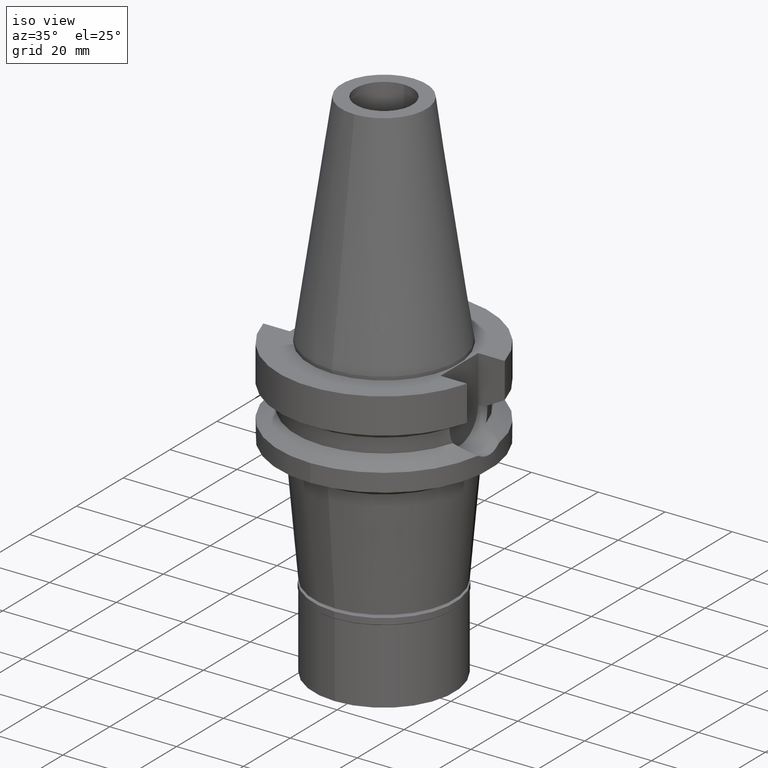
[diagram: clean part render]
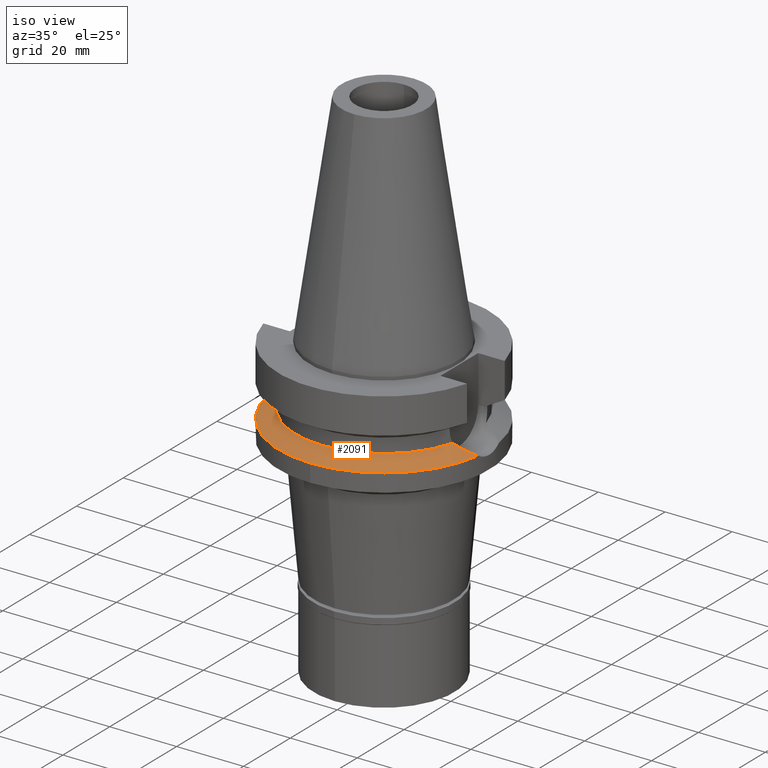
[diagram: same view with one face highlighted and labeled with its STEP entity id]
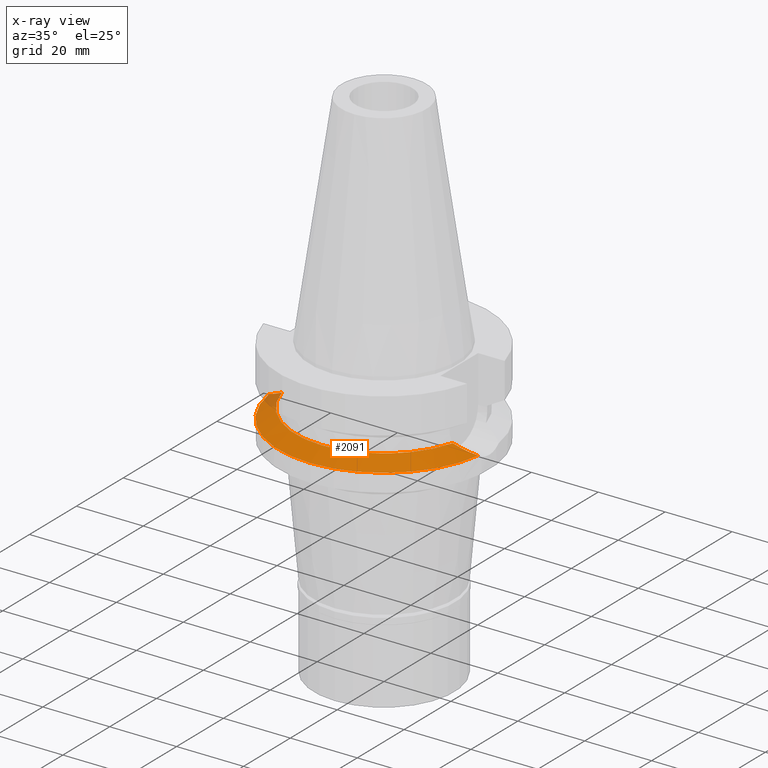
[diagram: x-ray of the same camera — body ghosted, the highlighted face saturated]
A machine part, iso view. The second image highlights one B-rep face of the part: STEP entity #2091.
The next image is the same camera in x-ray: the body ghosted, the highlighted face saturated — about 3% of this face is hidden behind the body in this view.
In plain terms, the highlighted conical surface has half-angle 60 deg.
Its self-contained STEP definition (entity closure, byte-faithful):
#26 = EDGE_CURVE ( 'NONE', #1470, #2777, #822, .T. ) ;
#171 = CARTESIAN_POINT ( 'NONE',  ( 0.0000000000000000000, -31.50000000000000000, -21.63449434733000132 ) ) ;
#216 = CARTESIAN_POINT ( 'NONE',  ( -26.81186408031171453, -6.745981300219545673, -19.40539737300281686 ) ) ;
#222 = CIRCLE ( 'NONE', #2922, 31.50000000000000000 ) ;
#234 = AXIS2_PLACEMENT_3D ( 'NONE', #1024, #1545, #515 ) ;
#249 = B_SPLINE_CURVE_WITH_KNOTS ( 'NONE', 3,
 ( #2864, #1420, #2142, #2684, #2881, #712, #1672, #2653, #2160, #465, #2403, #216, #1201 ),
 .UNSPECIFIED., .F., .F.,
 ( 4, 2, 2, 1, 2, 2, 4 ),
 ( 0.0000000000000000000, 0.2499999999999999445, 0.3750000000000000000, 0.4374999999999997224, 0.4687499999999992228, 0.4999999999999987232, 1.000000000000000000 ),
 .UNSPECIFIED. ) ;
#253 = CARTESIAN_POINT ( 'NONE',  ( 27.36157399842180382, -6.509459009752189829, -19.68606828696868760 ) ) ;
#336 = CONICAL_SURFACE ( 'NONE', #2642, 29.00000000000000000, 1.047197551196400456 ) ;
#370 = VERTEX_POINT ( 'NONE', #1737 ) ;
#418 = DIRECTION ( 'NONE',  ( 0.0000000000000000000, 0.0000000000000000000, -1.000000000000000000 ) ) ;
#431 = DIRECTION ( 'NONE',  ( -0.9634623335000935818, -0.2678438573619981722, 0.0000000000000000000 ) ) ;
#446 = ORIENTED_EDGE ( 'NONE', *, *, #1227, .F. ) ;
#465 = CARTESIAN_POINT ( 'NONE',  ( -28.90766734469384147, -5.853360823020639536, -20.47651099371737615 ) ) ;
#468 = CARTESIAN_POINT ( 'NONE',  ( 26.79437906115841983, -6.719518736959172678, -19.39569514649581450 ) ) ;
#474 = CARTESIAN_POINT ( 'NONE',  ( 25.53175183775000079, -7.097862220092999941, -18.74774300138999905 ) ) ;
#511 = DIRECTION ( 'NONE',  ( 0.0000000000000000000, 0.0000000000000000000, -1.000000000000000000 ) ) ;
#515 = DIRECTION ( 'NONE',  ( 0.9898094849552905306, -0.1423979757318985240, 0.0000000000000000000 ) ) ;
#516 = CARTESIAN_POINT ( 'NONE',  ( 29.92547015430718105, -5.317011991061079357, -20.99582295828512457 ) ) ;
#535 = CARTESIAN_POINT ( 'NONE',  ( 30.50795924305214513, -4.966138605046432453, -21.29275614339417544 ) ) ;
#712 = CARTESIAN_POINT ( 'NONE',  ( -29.39966731715744785, -5.605957541500057317, -20.72769865750730744 ) ) ;
#714 = CARTESIAN_POINT ( 'NONE',  ( 25.53175183775000079, -7.097862220092999941, -18.74774300138999905 ) ) ;
#727 = CARTESIAN_POINT ( 'NONE',  ( 27.46543449115334212, -6.470451347198184600, -19.73923068473311204 ) ) ;
#774 = CARTESIAN_POINT ( 'NONE',  ( 30.86110005879823603, -4.726716024914688674, -21.47265403028684005 ) ) ;
#822 = B_SPLINE_CURVE_WITH_KNOTS ( 'NONE', 3,
 ( #1247, #774, #535, #516, #1454, #1979, #954, #1501, #2914, #3148, #1709, #2689, #727, #1740, #253, #468, #1232, #714 ),
 .UNSPECIFIED., .F., .F.,
 ( 4, 2, 2, 2, 2, 1, 1, 2, 2, 4 ),
 ( 0.0000000000000000000, 0.2500000000000039413, 0.3750000000000055511, 0.5000000000000072164, 0.6250000000000088818, 0.6875000000000096589, 0.7187500000000096589, 0.7343750000000096589, 0.7500000000000096589, 1.000000000000000000 ),
 .UNSPECIFIED. ) ;
#845 = EDGE_CURVE ( 'NONE', #2597, #370, #222, .T. ) ;
#954 = CARTESIAN_POINT ( 'NONE',  ( 29.08021064321458837, -5.770999253069938995, -20.56461318402386240 ) ) ;
#1024 = CARTESIAN_POINT ( 'NONE',  ( 0.0000000000000000000, 0.0000000000000000000, -21.63449434733000132 ) ) ;
#1201 = CARTESIAN_POINT ( 'NONE',  ( -25.53175183775000079, -7.097862220092999941, -18.74774300138999905 ) ) ;
#1227 = EDGE_CURVE ( 'NONE', #1597, #2777, #2776, .T. ) ;
#1232 = CARTESIAN_POINT ( 'NONE',  ( 26.19525032478314586, -6.915477855514470917, -19.08861364229106172 ) ) ;
#1247 = CARTESIAN_POINT ( 'NONE',  ( 31.17899877608999759, -4.485536235554000051, -21.63449434733000132 ) ) ;
#1258 = CIRCLE ( 'NONE', #234, 31.50000000000001421 ) ;
#1306 = CARTESIAN_POINT ( 'NONE',  ( -25.53175183775000079, -7.097862220092999941, -18.74774300138999905 ) ) ;
#1420 = CARTESIAN_POINT ( 'NONE',  ( -30.85564314035758215, -4.730856017837928640, -21.46987594606682492 ) ) ;
#1446 = DIRECTION ( 'NONE',  ( 0.0000000000000000000, 0.0000000000000000000, 1.000000000000000000 ) ) ;
#1454 = CARTESIAN_POINT ( 'NONE',  ( 29.72251472659647931, -5.432586942203953662, -20.89233083745377328 ) ) ;
#1470 = VERTEX_POINT ( 'NONE', #1743 ) ;
#1501 = CARTESIAN_POINT ( 'NONE',  ( 28.61865544333286593, -5.991295213228831074, -20.32891002976932526 ) ) ;
#1519 = EDGE_LOOP ( 'NONE', ( #2532, #3116, #1918, #446, #2997 ) ) ;
#1545 = DIRECTION ( 'NONE',  ( 0.0000000000000000000, 0.0000000000000000000, -1.000000000000000000 ) ) ;
#1597 = VERTEX_POINT ( 'NONE', #1306 ) ;
#1672 = CARTESIAN_POINT ( 'NONE',  ( -29.23885772301222730, -5.689750579808331210, -20.64561609297808431 ) ) ;
#1709 = CARTESIAN_POINT ( 'NONE',  ( 27.80169807866624154, -6.340445604692715342, -19.91129617893627923 ) ) ;
#1737 = CARTESIAN_POINT ( 'NONE',  ( -31.17899877608999759, -4.485536235554000051, -21.63449434733000132 ) ) ;
#1740 = CARTESIAN_POINT ( 'NONE',  ( 27.39708669592975809, -6.496197659214550058, -19.70424711622213110 ) ) ;
#1743 = CARTESIAN_POINT ( 'NONE',  ( 31.17899877608999759, -4.485536235554000051, -21.63449434733000132 ) ) ;
#1819 = FACE_OUTER_BOUND ( 'NONE', #1519, .T. ) ;
#1859 = EDGE_CURVE ( 'NONE', #1470, #2597, #1258, .T. ) ;
#1918 = ORIENTED_EDGE ( 'NONE', *, *, #26, .T. ) ;
#1979 = CARTESIAN_POINT ( 'NONE',  ( 29.29908582230972769, -5.659962057570722571, -20.67631781086769749 ) ) ;
#2091 = ADVANCED_FACE ( 'NONE', ( #1819 ), #336, .T. ) ;
#2142 = CARTESIAN_POINT ( 'NONE',  ( -30.49983521273136233, -4.971560412114491179, -21.28875243116297966 ) ) ;
#2160 = CARTESIAN_POINT ( 'NONE',  ( -28.96222159273586527, -5.826923819671078419, -20.50436885698064060 ) ) ;
#2181 = DIRECTION ( 'NONE',  ( 0.0000000000000000000, -1.000000000000000000, 0.0000000000000000000 ) ) ;
#2325 = EDGE_CURVE ( 'NONE', #370, #1597, #249, .T. ) ;
#2403 = CARTESIAN_POINT ( 'NONE',  ( -27.91775928738498180, -6.325838571199904337, -19.97099377992669034 ) ) ;
#2532 = ORIENTED_EDGE ( 'NONE', *, *, #845, .F. ) ;
#2586 = AXIS2_PLACEMENT_3D ( 'NONE', #2836, #1446, #431 ) ;
#2597 = VERTEX_POINT ( 'NONE', #171 ) ;
#2642 = AXIS2_PLACEMENT_3D ( 'NONE', #2788, #418, #2823 ) ;
#2653 = CARTESIAN_POINT ( 'NONE',  ( -29.07348452531941518, -5.772235634599136134, -20.56118083635793070 ) ) ;
#2684 = CARTESIAN_POINT ( 'NONE',  ( -29.91744488345130648, -5.321813187524216282, -20.99187290712183440 ) ) ;
#2689 = CARTESIAN_POINT ( 'NONE',  ( 27.56742668355510162, -6.431705090889930254, -19.79143000378811834 ) ) ;
#2708 = CARTESIAN_POINT ( 'NONE',  ( 0.0000000000000000000, 0.0000000000000000000, -21.63449434733000132 ) ) ;
#2776 = CIRCLE ( 'NONE', #2586, 26.49999999999998224 ) ;
#2777 = VERTEX_POINT ( 'NONE', #474 ) ;
#2788 = CARTESIAN_POINT ( 'NONE',  ( 0.0000000000000000000, 0.0000000000000000000, -20.19111867435999841 ) ) ;
#2823 = DIRECTION ( 'NONE',  ( 0.0000000000000000000, -1.000000000000000000, 0.0000000000000000000 ) ) ;
#2836 = CARTESIAN_POINT ( 'NONE',  ( 0.0000000000000000000, 0.0000000000000000000, -18.74774300138999905 ) ) ;
#2864 = CARTESIAN_POINT ( 'NONE',  ( -31.17899877608999759, -4.485536235554000051, -21.63449434733000132 ) ) ;
#2881 = CARTESIAN_POINT ( 'NONE',  ( -29.71520170071783795, -5.436759791793832619, -20.88871955076065845 ) ) ;
#2914 = CARTESIAN_POINT ( 'NONE',  ( 28.37646577869300657, -6.100301504317534373, -20.20516973346428102 ) ) ;
#2922 = AXIS2_PLACEMENT_3D ( 'NONE', #2708, #511, #2181 ) ;
#2997 = ORIENTED_EDGE ( 'NONE', *, *, #2325, .F. ) ;
#3116 = ORIENTED_EDGE ( 'NONE', *, *, #1859, .F. ) ;
#3148 = CARTESIAN_POINT ( 'NONE',  ( 27.99612884649479483, -6.260885910137527155, -20.01072621024005471 ) ) ;